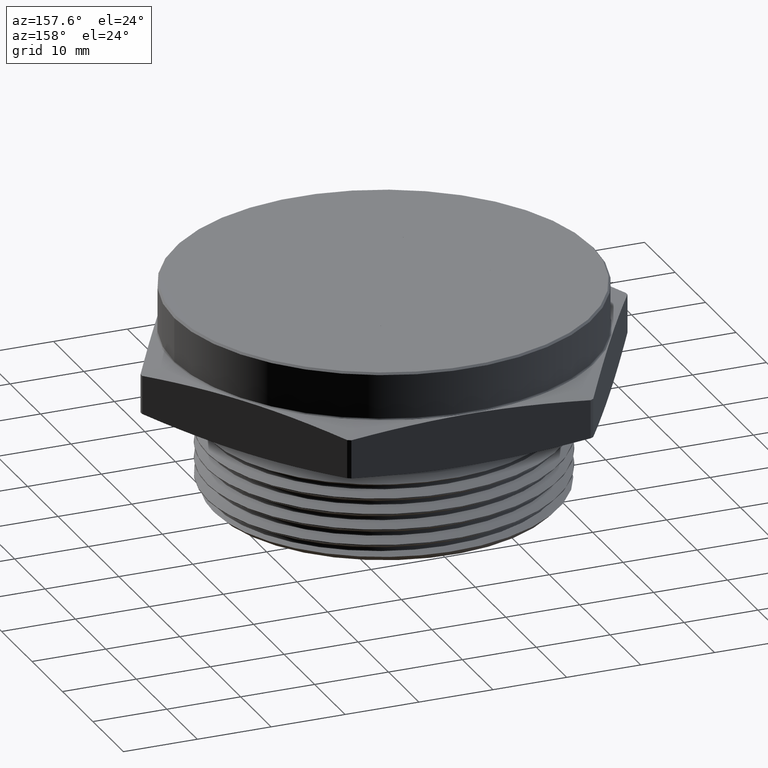
[diagram: clean part render]
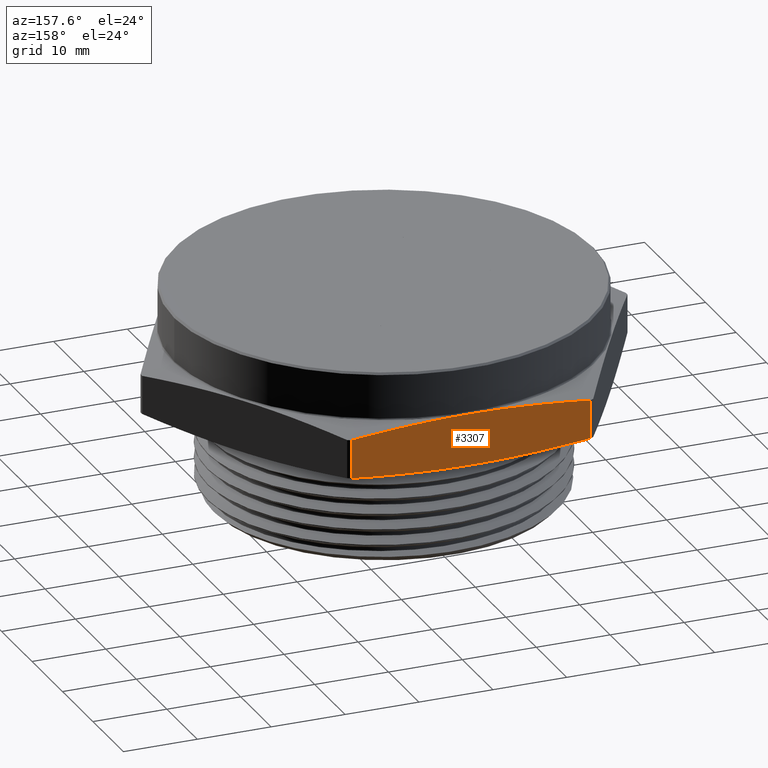
[diagram: same view with one face highlighted and labeled with its STEP entity id]
A machine part, auxiliary view. The second image highlights one B-rep face of the part: STEP entity #3307.
In plain terms, the highlighted planar face has unit normal (0, -1, 0).
Its self-contained STEP definition (entity closure, byte-faithful):
#36 = VERTEX_POINT ( 'NONE', #2642 ) ;
#264 = B_SPLINE_CURVE_WITH_KNOTS ( 'NONE', 3,
 ( #2840, #2841, #2845, #2846, #2847, #2848, #2849, #2850, #2851, #2852 ),
 .UNSPECIFIED., .F., .F.,
 ( 4, 2, 2, 2, 4 ),
 ( 0.02769179961683586000, 0.03581952015356587600, 0.04394724069029590200, 0.05207496122702591500, 0.06020268176375594100 ),
 .UNSPECIFIED. ) ;
#267 = B_SPLINE_CURVE_WITH_KNOTS ( 'NONE', 3,
 ( #2890, #2886, #2885, #2891, #2892, #2893, #2894, #2895, #2896, #2897 ),
 .UNSPECIFIED., .F., .F.,
 ( 4, 2, 2, 2, 4 ),
 ( 0.06266526221113374900, 0.07078503169155564400, 0.07890480117197754000, 0.08702457065239942200, 0.09514434013282131700 ),
 .UNSPECIFIED. ) ;
#448 = AXIS2_PLACEMENT_3D ( 'NONE', #2127, #2132, #2133 ) ;
#561 = LINE ( 'NONE', #3218, #564 ) ;
#563 = LINE ( 'NONE', #3220, #566 ) ;
#564 = VECTOR ( 'NONE', #3219, 39.37007874015748100 ) ;
#566 = VECTOR ( 'NONE', #3221, 39.37007874015748100 ) ;
#604 = FACE_OUTER_BOUND ( 'NONE', #1697, .T. ) ;
#663 = EDGE_CURVE ( 'NONE', #2440, #36, #264, .T. ) ;
#673 = EDGE_CURVE ( 'NONE', #2436, #2430, #267, .T. ) ;
#723 = EDGE_CURVE ( 'NONE', #36, #2436, #561, .T. ) ;
#724 = EDGE_CURVE ( 'NONE', #2430, #2440, #563, .T. ) ;
#1697 = EDGE_LOOP ( 'NONE', ( #2474, #2470, #2473, #2471 ) ) ;
#2086 = CARTESIAN_POINT ( 'NONE',  ( -0.6374343438597258600, 1.125000000000000200, 0.2426882238153008600 ) ) ;
#2091 = CARTESIAN_POINT ( 'NONE',  ( 0.6374343438597258600, 1.125000000000000200, 0.2426882238153007200 ) ) ;
#2095 = CARTESIAN_POINT ( 'NONE',  ( -0.6374343438597258600, 1.125000000000000200, 0.03731177618469963500 ) ) ;
#2126 = PLANE ( 'NONE',  #448 ) ;
#2127 = CARTESIAN_POINT ( 'NONE',  ( 0.6495190528383287800, 1.125000000000000200, 0.2800000000000000300 ) ) ;
#2132 = DIRECTION ( 'NONE',  ( 0.0000000000000000000, -1.000000000000000000, 0.0000000000000000000 ) ) ;
#2133 = DIRECTION ( 'NONE',  ( 0.0000000000000000000, -0.0000000000000000000, -1.000000000000000000 ) ) ;
#2430 = VERTEX_POINT ( 'NONE', #2086 ) ;
#2436 = VERTEX_POINT ( 'NONE', #2091 ) ;
#2440 = VERTEX_POINT ( 'NONE', #2095 ) ;
#2470 = ORIENTED_EDGE ( 'NONE', *, *, #673, .F. ) ;
#2471 = ORIENTED_EDGE ( 'NONE', *, *, #663, .F. ) ;
#2473 = ORIENTED_EDGE ( 'NONE', *, *, #723, .F. ) ;
#2474 = ORIENTED_EDGE ( 'NONE', *, *, #724, .F. ) ;
#2642 = CARTESIAN_POINT ( 'NONE',  ( 0.6374343438597258600, 1.125000000000000200, 0.03731177618469939900 ) ) ;
#2840 = CARTESIAN_POINT ( 'NONE',  ( -0.6374343438597258600, 1.125000000000000200, 0.03731177618469963500 ) ) ;
#2841 = CARTESIAN_POINT ( 'NONE',  ( -0.5312776009486889200, 1.125000000000000200, 0.02618815382265889500 ) ) ;
#2845 = CARTESIAN_POINT ( 'NONE',  ( -0.4247182712730737100, 1.125000000000000200, 0.01713964291290370400 ) ) ;
#2846 = CARTESIAN_POINT ( 'NONE',  ( -0.2119210604542353400, 1.125000000000000000, 0.004824846958273879300 ) ) ;
#2847 = CARTESIAN_POINT ( 'NONE',  ( -0.1055877951482562000, 1.125000000000000200, 0.001580717213316488800 ) ) ;
#2848 = CARTESIAN_POINT ( 'NONE',  ( 0.1069326082768469500, 1.125000000000000200, 0.001607716636902669400 ) ) ;
#2849 = CARTESIAN_POINT ( 'NONE',  ( 0.2131197694976831900, 1.125000000000000200, 0.004877815787430873700 ) ) ;
#2850 = CARTESIAN_POINT ( 'NONE',  ( 0.4253645547228554500, 1.125000000000000200, 0.01719358893255708300 ) ) ;
#2851 = CARTESIAN_POINT ( 'NONE',  ( 0.5314229833530498300, 1.125000000000000200, 0.02620338770154247500 ) ) ;
#2852 = CARTESIAN_POINT ( 'NONE',  ( 0.6374343438597258600, 1.125000000000000200, 0.03731177618469939900 ) ) ;
#2885 = CARTESIAN_POINT ( 'NONE',  ( 0.4253645547228557300, 1.125000000000000200, 0.2628064110674431800 ) ) ;
#2886 = CARTESIAN_POINT ( 'NONE',  ( 0.5314229833530502700, 1.125000000000000200, 0.2537966122984576200 ) ) ;
#2890 = CARTESIAN_POINT ( 'NONE',  ( 0.6374343438597258600, 1.125000000000000200, 0.2426882238153007200 ) ) ;
#2891 = CARTESIAN_POINT ( 'NONE',  ( 0.2131197694976835800, 1.125000000000000000, 0.2751221842125694000 ) ) ;
#2892 = CARTESIAN_POINT ( 'NONE',  ( 0.1069326082768472800, 1.125000000000000200, 0.2783922833630976300 ) ) ;
#2893 = CARTESIAN_POINT ( 'NONE',  ( -0.1055877951482558800, 1.125000000000000200, 0.2784192827866839900 ) ) ;
#2894 = CARTESIAN_POINT ( 'NONE',  ( -0.2119210604542350100, 1.125000000000000200, 0.2751751530417265200 ) ) ;
#2895 = CARTESIAN_POINT ( 'NONE',  ( -0.4247182712730733800, 1.125000000000000200, 0.2628603570870968200 ) ) ;
#2896 = CARTESIAN_POINT ( 'NONE',  ( -0.5312776009486883700, 1.125000000000000200, 0.2538118461773416500 ) ) ;
#2897 = CARTESIAN_POINT ( 'NONE',  ( -0.6374343438597258600, 1.125000000000000200, 0.2426882238153008600 ) ) ;
#3218 = CARTESIAN_POINT ( 'NONE',  ( 0.6374343438597258600, 1.125000000000000200, -7.806319288744044000E-017 ) ) ;
#3219 = DIRECTION ( 'NONE',  ( 1.224646799147349800E-016, 0.0000000000000000000, 1.000000000000000000 ) ) ;
#3220 = CARTESIAN_POINT ( 'NONE',  ( -0.6374343438597258600, 1.125000000000000200, 7.806319288744044000E-017 ) ) ;
#3221 = DIRECTION ( 'NONE',  ( -1.224646799147349800E-016, -0.0000000000000000000, -1.000000000000000000 ) ) ;
#3307 = ADVANCED_FACE ( 'NONE', ( #604 ), #2126, .F. ) ;